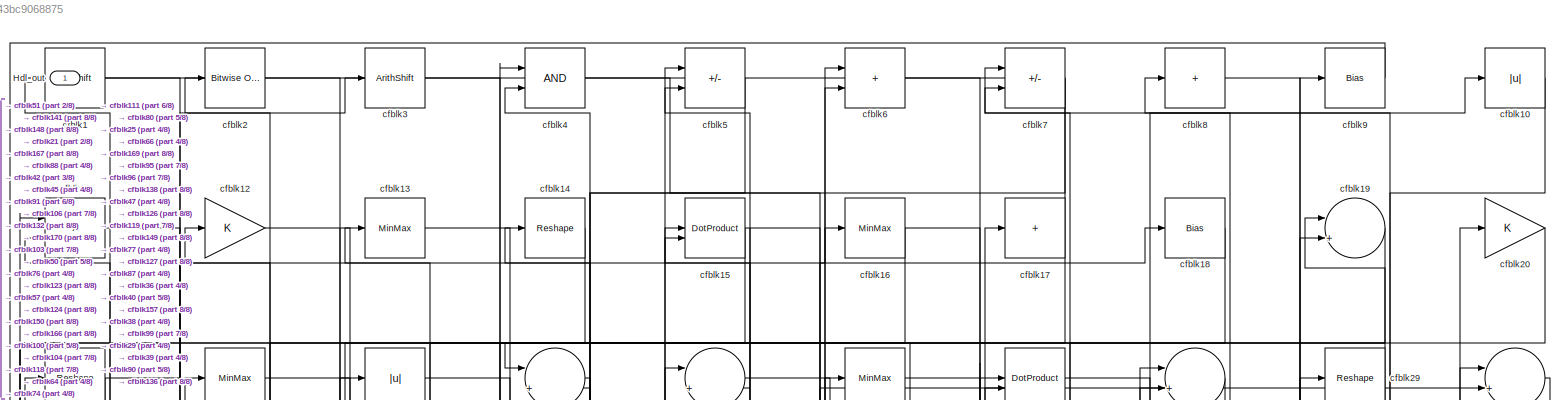
[diagram: root canvas - part 1/8, full width, top band]
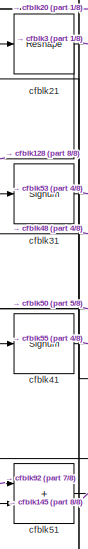
[diagram: root canvas - part 2/8, top left region]
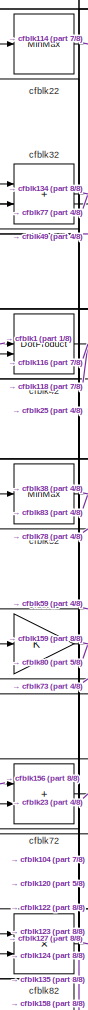
[diagram: root canvas - part 3/8, top left region]
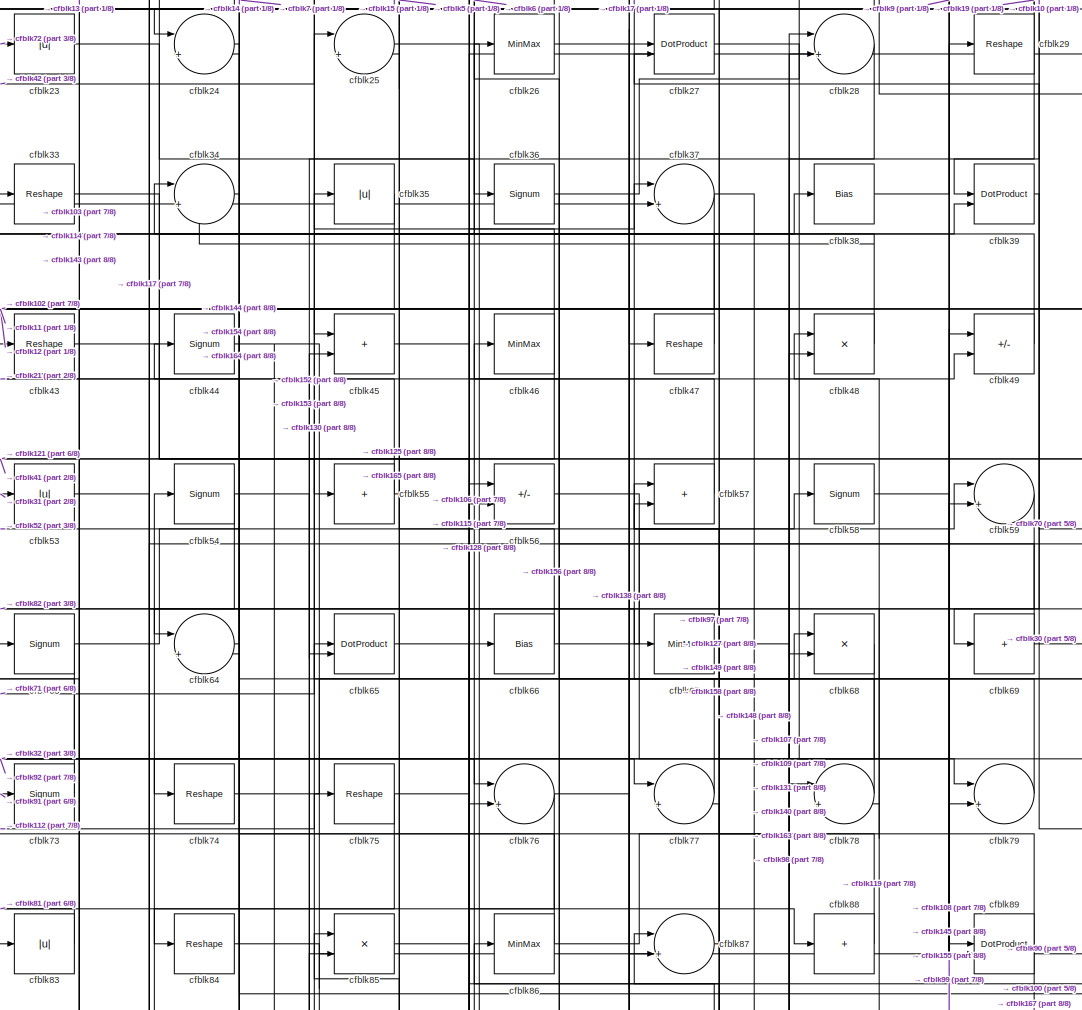
[diagram: root canvas - part 4/8, top center region]
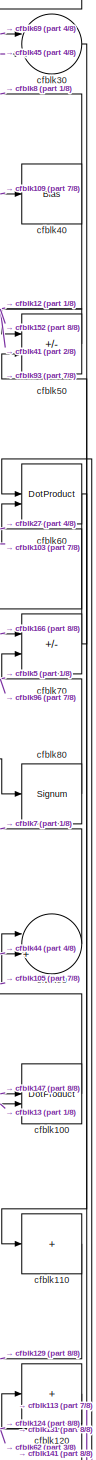
[diagram: root canvas - part 5/8, middle right region]
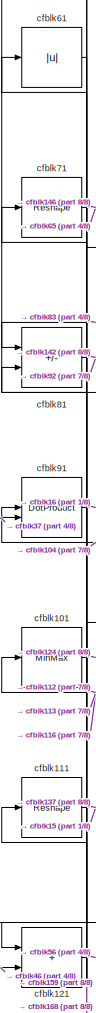
[diagram: root canvas - part 6/8, middle left region]
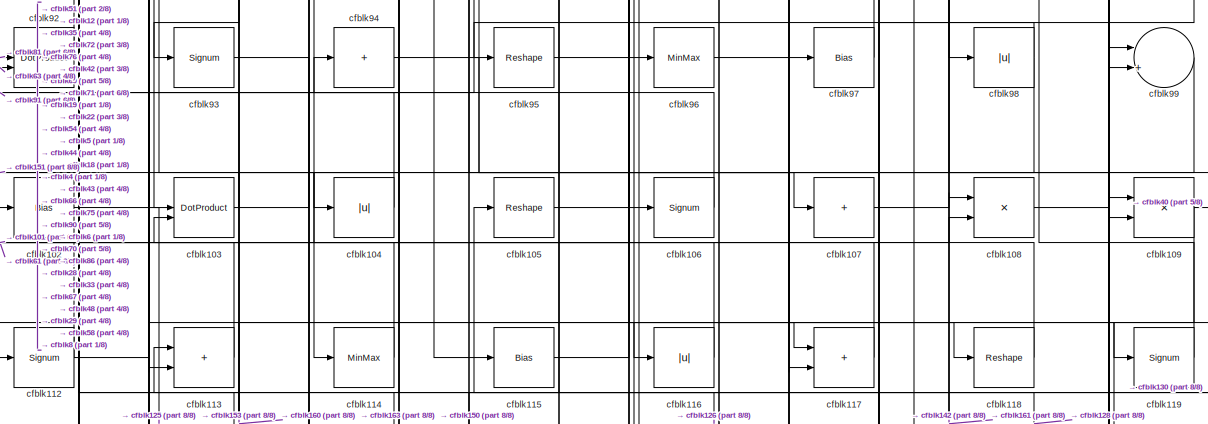
[diagram: root canvas - part 7/8, full width, middle band]
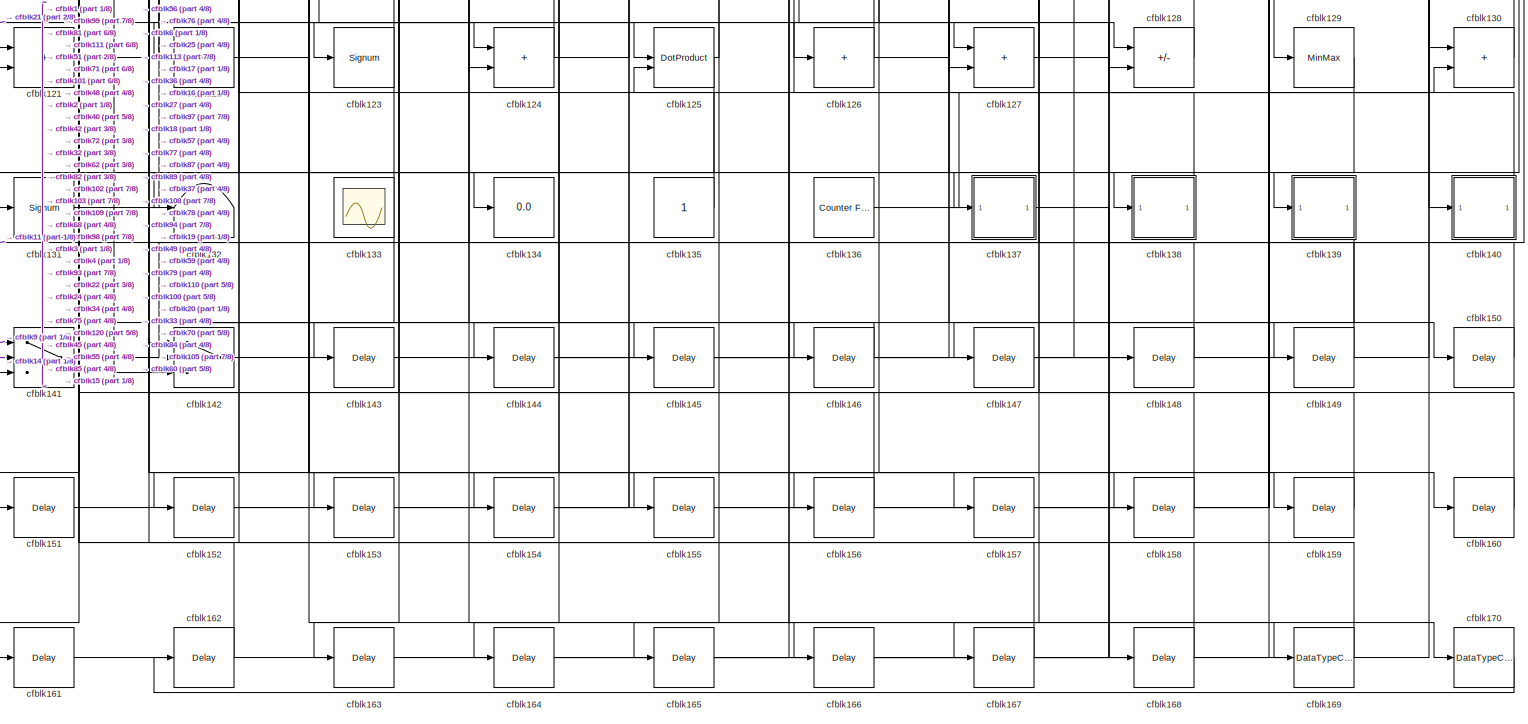
[diagram: root canvas - part 8/8, full width, bottom band]
MODEL slx_043bc9068875
KIND model
CONFIG AbsTol = auto
CONFIG EnableMultiTasking = off
CONFIG FixedStep = auto
CONFIG MaxStep = auto
CONFIG MinStep = auto
CONFIG RelTol = 1e-3
CONFIG SampleTimeConstraint = Unconstrained
CONFIG SolverName = VariableStepAuto
CONFIG StartTime = 0.0
CONFIG StopTime = 10.0
BLOCK [Outport] Hdl_out
  OutDataTypeStr = uint8
BLOCK [Reference] cfblk1  REF=hdlsllib/Logic and Bit
Operations/Bit Shift
  SourceBlock = hdlsllib/Logic and Bit\nOperations/Bit Shift
  SourceType = Bit Shift
BLOCK [Abs] cfblk10
  OutDataTypeStr = uint8
  SaturateOnIntegerOverflow = off
BLOCK [DotProduct] cfblk100
  OutDataTypeStr = uint8
BLOCK [MinMax] cfblk101
  OutDataTypeStr = uint8
BLOCK [Bias] cfblk102
  Bias = 0.0
  SaturateOnIntegerOverflow = off
BLOCK [DotProduct] cfblk103
  OutDataTypeStr = uint8
BLOCK [Abs] cfblk104
  OutDataTypeStr = uint8
  SaturateOnIntegerOverflow = off
BLOCK [Reshape] cfblk105
BLOCK [Signum] cfblk106
BLOCK [Sum] cfblk107
  IconShape = rectangular
  Inputs = +
  OutDataTypeStr = uint8
BLOCK [Product] cfblk108
  Inputs = */
  OutDataTypeStr = uint8
  RndMeth = Zero
  SaturateOnIntegerOverflow = on
BLOCK [Product] cfblk109
  Inputs = */
  OutDataTypeStr = uint8
  RndMeth = Zero
  SaturateOnIntegerOverflow = on
BLOCK [Product] cfblk11
  Inputs = */
  OutDataTypeStr = uint8
  RndMeth = Zero
  SaturateOnIntegerOverflow = on
BLOCK [Sum] cfblk110
  IconShape = rectangular
  Inputs = +
  OutDataTypeStr = uint8
BLOCK [Reshape] cfblk111
BLOCK [Signum] cfblk112
BLOCK [Sum] cfblk113
  IconShape = rectangular
  OutDataTypeStr = uint8
BLOCK [MinMax] cfblk114
  OutDataTypeStr = uint8
BLOCK [Bias] cfblk115
  Bias = 0.0
  SaturateOnIntegerOverflow = off
BLOCK [Abs] cfblk116
  OutDataTypeStr = uint8
  SaturateOnIntegerOverflow = off
BLOCK [Sum] cfblk117
  IconShape = rectangular
  OutDataTypeStr = uint8
BLOCK [Reshape] cfblk118
BLOCK [Signum] cfblk119
BLOCK [Gain] cfblk12
  OutDataTypeStr = uint8
BLOCK [Sum] cfblk120
  IconShape = rectangular
  Inputs = +
  OutDataTypeStr = uint8
BLOCK [Sum] cfblk121
  IconShape = rectangular
  OutDataTypeStr = uint8
BLOCK [Sum] cfblk122
  IconShape = rectangular
  Inputs = +
  OutDataTypeStr = uint8
BLOCK [Signum] cfblk123
BLOCK [Sum] cfblk124
  IconShape = rectangular
  OutDataTypeStr = uint8
BLOCK [DotProduct] cfblk125
  OutDataTypeStr = uint8
BLOCK [Sum] cfblk126
  IconShape = rectangular
  Inputs = +
  OutDataTypeStr = uint8
BLOCK [Sum] cfblk127
  IconShape = rectangular
  OutDataTypeStr = uint8
BLOCK [Sum] cfblk128
  IconShape = rectangular
  Inputs = +-
  OutDataTypeStr = uint8
BLOCK [MinMax] cfblk129
  OutDataTypeStr = uint8
BLOCK [MinMax] cfblk13
  OutDataTypeStr = uint8
BLOCK [Sum] cfblk130
  IconShape = rectangular
  OutDataTypeStr = uint8
BLOCK [Signum] cfblk131
BLOCK [Terminator] cfblk132
BLOCK [Scope] cfblk133
  Floating = on
  NumInputPorts = 1
  ScopeSpecificationString = Simulink.scopes.TimeScopeBlockCfg('CurrentConfiguration', extmgr.ConfigurationSet(extmgr.Configuration('Core','General UI',true,'FigureColor',[0.156862745098039 0.156862745098039 0.156862745098039]),extmgr.Configuration('Core','Source UI',true),extmgr.Configuration('Sources','WiredSimulink',true,'DataLoggingVariableName','ScopeData1','DataLoggingSaveFormat','StructureWithTime','DataLoggingLimitDat...<+2713ch>
BLOCK [Display] cfblk134
  Decimation = 1
BLOCK [Constant] cfblk135
  OutDataTypeStr = uint8
  SampleTime = -1
BLOCK [Reference] cfblk136  REF=hdlsllib/Sources/Counter
Free-Running
  SourceBlock = hdlsllib/Sources/Counter\nFree-Running
  SourceType = Counter Free-Running
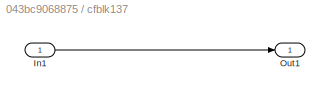
BLOCK [SubSystem] cfblk137
  LibrarySourceBlock = hdlsllib/Ports &\nSubsystems/Subsystem
BLOCK [Inport] cfblk137/In1
BLOCK [Outport] cfblk137/Out1
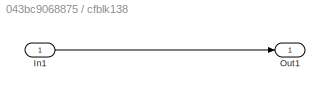
BLOCK [SubSystem] cfblk138
  LibrarySourceBlock = hdlsllib/Ports &\nSubsystems/Subsystem
BLOCK [Inport] cfblk138/In1
BLOCK [Outport] cfblk138/Out1
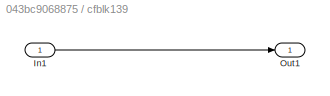
BLOCK [SubSystem] cfblk139
  LibrarySourceBlock = hdlsllib/Ports &\nSubsystems/Subsystem
BLOCK [Inport] cfblk139/In1
BLOCK [Outport] cfblk139/Out1
BLOCK [Reshape] cfblk14
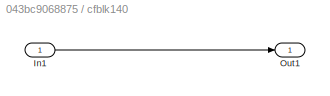
BLOCK [SubSystem] cfblk140
  LibrarySourceBlock = hdlsllib/Ports &\nSubsystems/Subsystem
BLOCK [Inport] cfblk140/In1
BLOCK [Outport] cfblk140/Out1
BLOCK [Switch] cfblk141
  InputSameDT = off
  OutDataTypeStr = uint8
  SaturateOnIntegerOverflow = off
BLOCK [Switch] cfblk142
  InputSameDT = off
  OutDataTypeStr = uint8
  SaturateOnIntegerOverflow = off
BLOCK [Delay] cfblk143
  InputPortMap = u0
  SampleTime = 1
BLOCK [Delay] cfblk144
  InputPortMap = u0
  SampleTime = 1
BLOCK [Delay] cfblk145
  InputPortMap = u0
  SampleTime = 1
BLOCK [Delay] cfblk146
  InputPortMap = u0
  SampleTime = 1
BLOCK [Delay] cfblk147
  InputPortMap = u0
  SampleTime = 1
BLOCK [Delay] cfblk148
  InputPortMap = u0
  SampleTime = 1
BLOCK [Delay] cfblk149
  InputPortMap = u0
  SampleTime = 1
BLOCK [DotProduct] cfblk15
  OutDataTypeStr = uint8
BLOCK [Delay] cfblk150
  InputPortMap = u0
  SampleTime = 1
BLOCK [Delay] cfblk151
  InputPortMap = u0
  SampleTime = 1
BLOCK [Delay] cfblk152
  InputPortMap = u0
  SampleTime = 1
BLOCK [Delay] cfblk153
  InputPortMap = u0
  SampleTime = 1
BLOCK [Delay] cfblk154
  InputPortMap = u0
  SampleTime = 1
BLOCK [Delay] cfblk155
  InputPortMap = u0
  SampleTime = 1
BLOCK [Delay] cfblk156
  InputPortMap = u0
  SampleTime = 1
BLOCK [Delay] cfblk157
  InputPortMap = u0
  SampleTime = 1
BLOCK [Delay] cfblk158
  InputPortMap = u0
  SampleTime = 1
BLOCK [Delay] cfblk159
  InputPortMap = u0
  SampleTime = 1
BLOCK [MinMax] cfblk16
  OutDataTypeStr = uint8
BLOCK [Delay] cfblk160
  InputPortMap = u0
  SampleTime = 1
BLOCK [Delay] cfblk161
  InputPortMap = u0
  SampleTime = 1
BLOCK [Delay] cfblk162
  InputPortMap = u0
  SampleTime = 1
BLOCK [Delay] cfblk163
  InputPortMap = u0
  SampleTime = 1
BLOCK [Delay] cfblk164
  InputPortMap = u0
  SampleTime = 1
BLOCK [Delay] cfblk165
  InputPortMap = u0
  SampleTime = 1
BLOCK [Delay] cfblk166
  InputPortMap = u0
  SampleTime = 1
BLOCK [Delay] cfblk167
  InputPortMap = u0
  SampleTime = 1
BLOCK [Delay] cfblk168
  InputPortMap = u0
  SampleTime = 1
BLOCK [DataTypeConversion] cfblk169
  OutDataTypeStr = uint8
  RndMeth = Floor
  SaturateOnIntegerOverflow = off
BLOCK [Sum] cfblk17
  IconShape = rectangular
  Inputs = +
  OutDataTypeStr = uint8
BLOCK [DataTypeConversion] cfblk170
  OutDataTypeStr = uint8
  RndMeth = Floor
  SaturateOnIntegerOverflow = off
BLOCK [Bias] cfblk18
  Bias = 0.0
  SaturateOnIntegerOverflow = off
BLOCK [Sum] cfblk19
  Inputs = |++
  OutDataTypeStr = uint8
BLOCK [Reference] cfblk2  REF=simulink/Logic and Bit
Operations/Bitwise
Operator
  LibrarySourceBlock = hdlsllib/Logic and Bit\nOperations/Bitwise\nOperator
  SourceBlock = simulink/Logic and Bit\nOperations/Bitwise\nOperator
  SourceType = Bitwise Operator
BLOCK [Gain] cfblk20
  OutDataTypeStr = uint8
BLOCK [Reshape] cfblk21
BLOCK [MinMax] cfblk22
  OutDataTypeStr = uint8
BLOCK [Abs] cfblk23
  OutDataTypeStr = uint8
  SaturateOnIntegerOverflow = off
BLOCK [Sum] cfblk24
  Inputs = |++
  OutDataTypeStr = uint8
BLOCK [Sum] cfblk25
  Inputs = |++
  OutDataTypeStr = uint8
BLOCK [MinMax] cfblk26
  OutDataTypeStr = uint8
BLOCK [DotProduct] cfblk27
  OutDataTypeStr = uint8
BLOCK [Sum] cfblk28
  Inputs = |++
  OutDataTypeStr = uint8
BLOCK [Reshape] cfblk29
BLOCK [ArithShift] cfblk3
  BitShiftNumber = 8
  InputPortMap = u0
BLOCK [Sum] cfblk30
  Inputs = |++
  OutDataTypeStr = uint8
BLOCK [Signum] cfblk31
BLOCK [Sum] cfblk32
  IconShape = rectangular
  OutDataTypeStr = uint8
BLOCK [Reshape] cfblk33
BLOCK [Sum] cfblk34
  Inputs = |++
  OutDataTypeStr = uint8
BLOCK [Abs] cfblk35
  OutDataTypeStr = uint8
  SaturateOnIntegerOverflow = off
BLOCK [Signum] cfblk36
BLOCK [Sum] cfblk37
  Inputs = |++
  OutDataTypeStr = uint8
BLOCK [Bias] cfblk38
  Bias = 0.0
  SaturateOnIntegerOverflow = off
BLOCK [DotProduct] cfblk39
  OutDataTypeStr = uint8
BLOCK [Logic] cfblk4
  AllPortsSameDT = off
  OutDataTypeStr = boolean
BLOCK [Bias] cfblk40
  Bias = 0.0
  SaturateOnIntegerOverflow = off
BLOCK [Signum] cfblk41
BLOCK [DotProduct] cfblk42
  OutDataTypeStr = uint8
BLOCK [Reshape] cfblk43
BLOCK [Signum] cfblk44
BLOCK [Sum] cfblk45
  IconShape = rectangular
  OutDataTypeStr = uint8
BLOCK [MinMax] cfblk46
  OutDataTypeStr = uint8
BLOCK [Reshape] cfblk47
BLOCK [Product] cfblk48
  Inputs = */
  OutDataTypeStr = uint8
  RndMeth = Zero
  SaturateOnIntegerOverflow = on
BLOCK [Sum] cfblk49
  IconShape = rectangular
  Inputs = +-
  OutDataTypeStr = uint8
BLOCK [Sum] cfblk5
  IconShape = rectangular
  Inputs = +-
  OutDataTypeStr = uint8
BLOCK [Sum] cfblk50
  IconShape = rectangular
  Inputs = +-
  OutDataTypeStr = uint8
BLOCK [Sum] cfblk51
  IconShape = rectangular
  OutDataTypeStr = uint8
BLOCK [MinMax] cfblk52
  OutDataTypeStr = uint8
BLOCK [Abs] cfblk53
  OutDataTypeStr = uint8
  SaturateOnIntegerOverflow = off
BLOCK [Signum] cfblk54
BLOCK [Sum] cfblk55
  IconShape = rectangular
  Inputs = +
  OutDataTypeStr = uint8
BLOCK [Sum] cfblk56
  IconShape = rectangular
  Inputs = +-
  OutDataTypeStr = uint8
BLOCK [Sum] cfblk57
  IconShape = rectangular
  OutDataTypeStr = uint8
BLOCK [Signum] cfblk58
BLOCK [Sum] cfblk59
  Inputs = |++
  OutDataTypeStr = uint8
BLOCK [Sum] cfblk6
  IconShape = rectangular
  OutDataTypeStr = uint8
BLOCK [DotProduct] cfblk60
  OutDataTypeStr = uint8
BLOCK [Abs] cfblk61
  OutDataTypeStr = uint8
  SaturateOnIntegerOverflow = off
BLOCK [Gain] cfblk62
  OutDataTypeStr = uint8
BLOCK [Signum] cfblk63
BLOCK [Sum] cfblk64
  Inputs = |++
  OutDataTypeStr = uint8
BLOCK [DotProduct] cfblk65
  OutDataTypeStr = uint8
BLOCK [Bias] cfblk66
  Bias = 0.0
  SaturateOnIntegerOverflow = off
BLOCK [MinMax] cfblk67
  OutDataTypeStr = uint8
BLOCK [Product] cfblk68
  Inputs = */
  OutDataTypeStr = uint8
  RndMeth = Zero
  SaturateOnIntegerOverflow = on
BLOCK [Sum] cfblk69
  IconShape = rectangular
  Inputs = +
  OutDataTypeStr = uint8
BLOCK [Sum] cfblk7
  IconShape = rectangular
  Inputs = +-
  OutDataTypeStr = uint8
BLOCK [Sum] cfblk70
  IconShape = rectangular
  Inputs = +-
  OutDataTypeStr = uint8
BLOCK [Reshape] cfblk71
BLOCK [Sum] cfblk72
  IconShape = rectangular
  OutDataTypeStr = uint8
BLOCK [Signum] cfblk73
BLOCK [Reshape] cfblk74
BLOCK [Reshape] cfblk75
BLOCK [Sum] cfblk76
  Inputs = |++
  OutDataTypeStr = uint8
BLOCK [Sum] cfblk77
  Inputs = |++
  OutDataTypeStr = uint8
BLOCK [Sum] cfblk78
  Inputs = |++
  OutDataTypeStr = uint8
BLOCK [Sum] cfblk79
  Inputs = |++
  OutDataTypeStr = uint8
BLOCK [Sum] cfblk8
  IconShape = rectangular
  Inputs = +
  OutDataTypeStr = uint8
BLOCK [Signum] cfblk80
BLOCK [Sum] cfblk81
  IconShape = rectangular
  Inputs = +-
  OutDataTypeStr = uint8
BLOCK [Product] cfblk82
  Inputs = */
  OutDataTypeStr = uint8
  RndMeth = Zero
  SaturateOnIntegerOverflow = on
BLOCK [Abs] cfblk83
  OutDataTypeStr = uint8
  SaturateOnIntegerOverflow = off
BLOCK [Reshape] cfblk84
BLOCK [Product] cfblk85
  Inputs = */
  OutDataTypeStr = uint8
  RndMeth = Zero
  SaturateOnIntegerOverflow = on
BLOCK [MinMax] cfblk86
  OutDataTypeStr = uint8
BLOCK [Sum] cfblk87
  Inputs = |++
  OutDataTypeStr = uint8
BLOCK [Sum] cfblk88
  IconShape = rectangular
  Inputs = +
  OutDataTypeStr = uint8
BLOCK [DotProduct] cfblk89
  OutDataTypeStr = uint8
BLOCK [Bias] cfblk9
  Bias = 0.0
  SaturateOnIntegerOverflow = off
BLOCK [Sum] cfblk90
  Inputs = |++
  OutDataTypeStr = uint8
BLOCK [DotProduct] cfblk91
  OutDataTypeStr = uint8
BLOCK [DotProduct] cfblk92
  OutDataTypeStr = uint8
BLOCK [Signum] cfblk93
BLOCK [Sum] cfblk94
  IconShape = rectangular
  Inputs = +
  OutDataTypeStr = uint8
BLOCK [Reshape] cfblk95
BLOCK [MinMax] cfblk96
  OutDataTypeStr = uint8
BLOCK [Bias] cfblk97
  Bias = 0.0
  SaturateOnIntegerOverflow = off
BLOCK [Abs] cfblk98
  OutDataTypeStr = uint8
  SaturateOnIntegerOverflow = off
BLOCK [Sum] cfblk99
  Inputs = |++
  OutDataTypeStr = uint8
LINE cfblk100:1 -> cfblk44:1
LINE cfblk101:1 -> cfblk124:1
LINE cfblk102:1 -> cfblk125:1
NET cfblk103:1 -> cfblk43:1, cfblk60:2
NET cfblk104:1 -> cfblk72:2, cfblk91:1
LINE cfblk105:1 -> cfblk90:1
LINE cfblk106:1 -> cfblk12:1
LINE cfblk107:1 -> cfblk28:1
LINE cfblk108:1 -> cfblk29:1
NET cfblk109:1 -> cfblk153:1, cfblk40:1
LINE cfblk10:1 -> cfblk39:1
LINE cfblk110:1 -> cfblk129:1
NET cfblk111:1 -> cfblk137:1, cfblk15:1
NET cfblk112:1 -> cfblk71:1, cfblk75:1
LINE cfblk113:1 -> cfblk101:1
LINE cfblk114:1 -> cfblk63:1
LINE cfblk115:1 -> cfblk66:1
LINE cfblk116:1 -> cfblk61:1
LINE cfblk117:1 -> cfblk54:1
LINE cfblk118:1 -> cfblk4:2
LINE cfblk119:1 -> cfblk48:1
LINE cfblk11:1 -> cfblk45:1
LINE cfblk120:1 -> cfblk62:1
NET cfblk121:1 -> cfblk37:2, cfblk56:1
LINE cfblk122:1 -> cfblk157:1
NET cfblk123:1 -> cfblk161:1, cfblk82:1
NET cfblk124:1 -> cfblk120:1, cfblk22:1
NET cfblk125:1 -> cfblk141:3, cfblk85:1
NET cfblk126:1 -> cfblk113:1, cfblk15:2, cfblk97:1
NET cfblk127:1 -> cfblk130:2, cfblk87:1
LINE cfblk128:1 -> cfblk94:1
LINE cfblk129:1 -> cfblk139:1
NET cfblk12:1 -> cfblk50:1, cfblk76:1
LINE cfblk130:1 -> cfblk105:1
NET cfblk131:1 -> cfblk155:1, cfblk48:2
LINE cfblk135:1 -> cfblk42:2
LINE cfblk136:1 -> cfblk20:1
LINE cfblk137/In1:1 -> cfblk137/Out1:1
LINE cfblk137:1 -> cfblk168:1
LINE cfblk138/In1:1 -> cfblk138/Out1:1
LINE cfblk138:1 -> cfblk6:1
LINE cfblk139/In1:1 -> cfblk139/Out1:1
LINE cfblk139:1 -> cfblk147:1
LINE cfblk13:1 -> cfblk100:2
LINE cfblk140/In1:1 -> cfblk140/Out1:1
LINE cfblk140:1 -> cfblk125:2
NET cfblk141:1 -> cfblk160:1, cfblk60:1
LINE cfblk142:1 -> cfblk108:1
LINE cfblk143:1 -> cfblk56:2
LINE cfblk144:1 -> cfblk27:1
LINE cfblk145:1 -> cfblk79:2
LINE cfblk146:1 -> cfblk142:2
LINE cfblk147:1 -> cfblk100:1
LINE cfblk148:1 -> cfblk11:1
LINE cfblk149:1 -> cfblk57:2
LINE cfblk14:1 -> cfblk141:2
LINE cfblk150:1 -> cfblk4:1
LINE cfblk151:1 -> cfblk109:1
LINE cfblk152:1 -> cfblk85:2
LINE cfblk153:1 -> cfblk45:2
LINE cfblk154:1 -> cfblk49:1
LINE cfblk155:1 -> cfblk59:2
LINE cfblk156:1 -> cfblk72:1
LINE cfblk157:1 -> cfblk19:2
LINE cfblk158:1 -> cfblk77:2
LINE cfblk159:1 -> cfblk81:2
NET cfblk15:1 -> cfblk123:1, cfblk169:1, cfblk25:2
LINE cfblk160:1 -> cfblk103:2
LINE cfblk161:1 -> cfblk108:2
LINE cfblk162:1 -> cfblk142:1
LINE cfblk163:1 -> cfblk78:1
LINE cfblk164:1 -> cfblk76:2
LINE cfblk165:1 -> cfblk89:2
LINE cfblk166:1 -> cfblk70:1
LINE cfblk167:1 -> cfblk1:1
LINE cfblk168:1 -> cfblk111:1
LINE cfblk169:1 -> cfblk2:1
NET cfblk16:1 -> cfblk132:1, cfblk149:1
LINE cfblk170:1 -> cfblk162:1
NET cfblk17:1 -> Hdl_out:1, cfblk124:2, cfblk126:1
LINE cfblk18:1 -> cfblk127:1
LINE cfblk19:1 -> cfblk103:1
LINE cfblk1:1 -> cfblk42:1
LINE cfblk20:1 -> cfblk51:2
NET cfblk21:1 -> cfblk128:1, cfblk3:1
LINE cfblk22:1 -> cfblk114:1
LINE cfblk23:1 -> cfblk36:1
LINE cfblk24:1 -> cfblk144:1
LINE cfblk25:1 -> cfblk128:2
LINE cfblk26:1 -> cfblk47:1
LINE cfblk27:1 -> cfblk79:1
LINE cfblk28:1 -> cfblk68:2
NET cfblk29:1 -> cfblk19:1, cfblk24:1, cfblk65:2
LINE cfblk2:1 -> cfblk170:1
LINE cfblk30:1 -> cfblk110:1
LINE cfblk31:1 -> cfblk53:1
NET cfblk32:1 -> cfblk134:1, cfblk77:1
NET cfblk33:1 -> cfblk140:1, cfblk39:2, cfblk98:1
LINE cfblk34:1 -> cfblk154:1
LINE cfblk35:1 -> cfblk102:1
NET cfblk36:1 -> cfblk10:1, cfblk138:1, cfblk156:1
NET cfblk37:1 -> cfblk148:1, cfblk73:1, cfblk91:2
LINE cfblk38:1 -> cfblk9:1
LINE cfblk39:1 -> cfblk69:1
LINE cfblk3:1 -> cfblk166:1
NET cfblk40:1 -> cfblk152:1, cfblk8:1, cfblk93:1
LINE cfblk41:1 -> cfblk55:1
NET cfblk42:1 -> cfblk116:1, cfblk118:1, cfblk25:1
LINE cfblk43:1 -> cfblk106:1
NET cfblk44:1 -> cfblk115:1, cfblk90:2
NET cfblk45:1 -> cfblk30:2, cfblk49:2
NET cfblk46:1 -> cfblk121:2, cfblk35:1
NET cfblk47:1 -> cfblk34:1, cfblk6:2
NET cfblk48:1 -> cfblk31:1, cfblk34:2
NET cfblk49:1 -> cfblk32:2, cfblk33:1
LINE cfblk4:1 -> cfblk96:1
LINE cfblk50:1 -> cfblk41:1
LINE cfblk51:1 -> cfblk145:1
NET cfblk52:1 -> cfblk38:1, cfblk83:1
LINE cfblk53:1 -> cfblk67:1
NET cfblk54:1 -> cfblk107:1, cfblk64:1
NET cfblk55:1 -> cfblk165:1, cfblk21:1
LINE cfblk56:1 -> cfblk89:1
LINE cfblk57:1 -> cfblk13:1
LINE cfblk58:1 -> cfblk99:2
NET cfblk59:1 -> cfblk78:2, cfblk82:2, cfblk84:1
LINE cfblk5:1 -> cfblk104:1
NET cfblk60:1 -> cfblk113:2, cfblk131:1
LINE cfblk61:1 -> cfblk121:1
NET cfblk62:1 -> cfblk159:1, cfblk80:1
NET cfblk63:1 -> cfblk58:1, cfblk92:2
LINE cfblk64:1 -> cfblk14:1
LINE cfblk65:1 -> cfblk88:1
NET cfblk66:1 -> cfblk59:1, cfblk5:2
LINE cfblk67:1 -> cfblk109:2
LINE cfblk68:1 -> cfblk143:1
NET cfblk69:1 -> cfblk26:1, cfblk30:1
LINE cfblk6:1 -> cfblk119:1
NET cfblk70:1 -> cfblk27:2, cfblk50:2
NET cfblk71:1 -> cfblk146:1, cfblk65:1
NET cfblk72:1 -> cfblk122:1, cfblk158:1, cfblk23:1
LINE cfblk73:1 -> cfblk32:1
LINE cfblk74:1 -> cfblk68:1
NET cfblk75:1 -> cfblk117:1, cfblk164:1
NET cfblk76:1 -> cfblk112:1, cfblk87:2
LINE cfblk77:1 -> cfblk17:1
LINE cfblk78:1 -> cfblk52:1
LINE cfblk79:1 -> cfblk46:1
LINE cfblk7:1 -> cfblk74:1
LINE cfblk80:1 -> cfblk5:1
NET cfblk81:1 -> cfblk142:3, cfblk92:1
LINE cfblk82:1 -> cfblk127:2
LINE cfblk83:1 -> cfblk81:1
NET cfblk84:1 -> cfblk130:1, cfblk24:2
LINE cfblk85:1 -> cfblk37:1
NET cfblk86:1 -> cfblk28:2, cfblk64:2
LINE cfblk87:1 -> cfblk7:1
LINE cfblk88:1 -> cfblk11:2
NET cfblk89:1 -> cfblk167:1, cfblk57:1
LINE cfblk8:1 -> cfblk99:1
LINE cfblk90:1 -> cfblk7:2
LINE cfblk91:1 -> cfblk16:1
LINE cfblk92:1 -> cfblk51:1
LINE cfblk93:1 -> cfblk150:1
LINE cfblk94:1 -> cfblk117:2
LINE cfblk95:1 -> cfblk18:1
LINE cfblk96:1 -> cfblk70:2
LINE cfblk97:1 -> cfblk86:1
NET cfblk98:1 -> cfblk163:1, cfblk95:1
LINE cfblk99:1 -> cfblk151:1
LINE cfblk9:1 -> cfblk141:1
note: NET lines group one-source signal fan-out (src -> all destinations, sorted); 1:1 wires keep LINE
